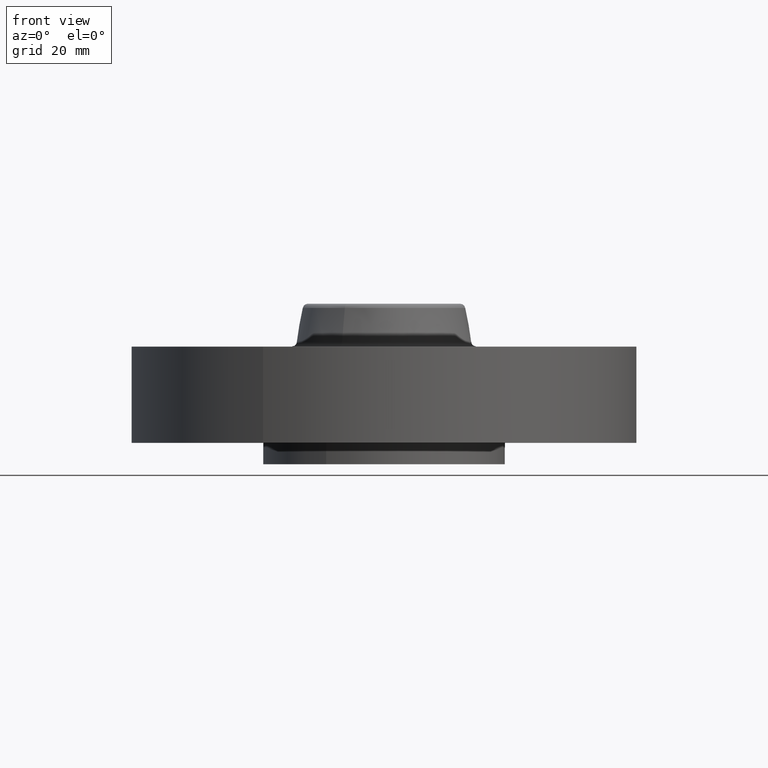
[diagram: clean part render]
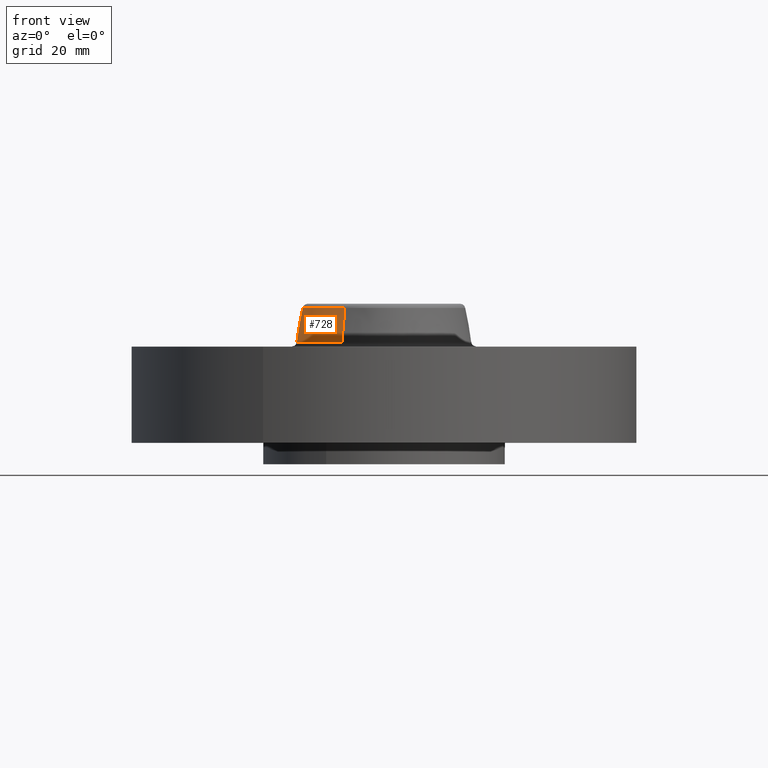
[diagram: same view with one face highlighted and labeled with its STEP entity id]
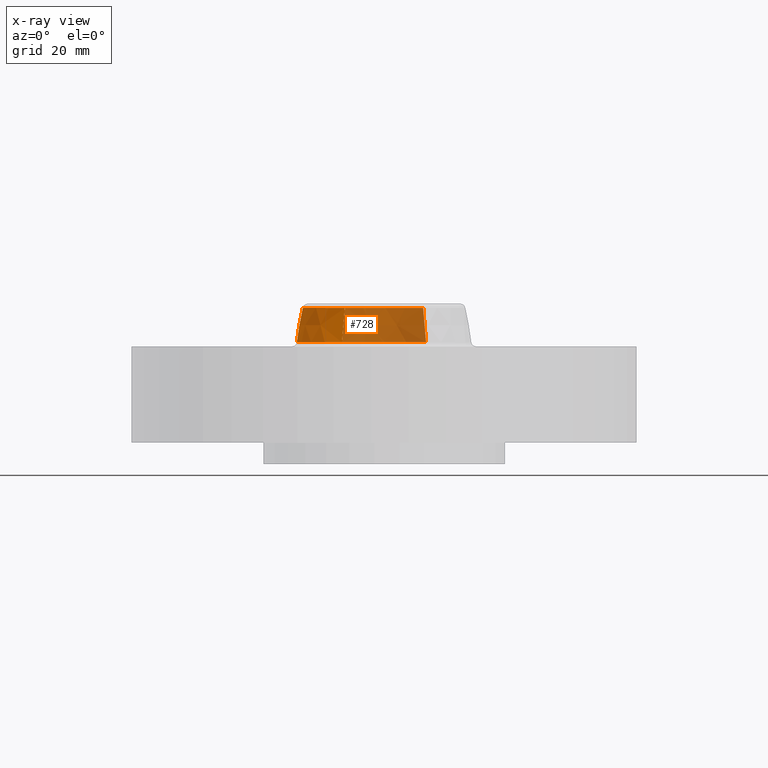
[diagram: x-ray of the same camera — body ghosted, the highlighted face saturated]
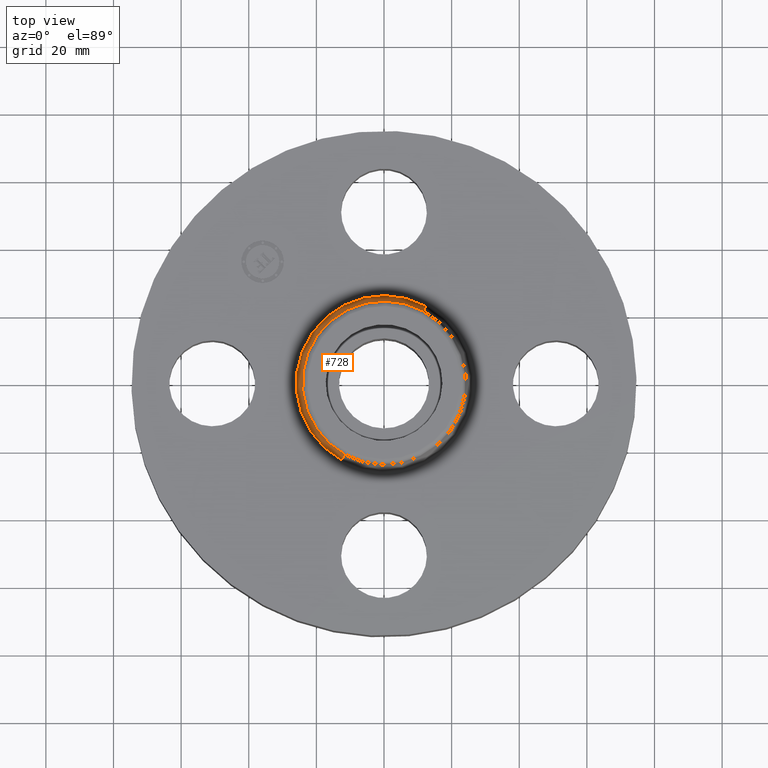
[diagram: same view with one face highlighted and labeled with its STEP entity id]
A machine part, front view. The second image highlights one B-rep face of the part: STEP entity #728.
The next image is the same camera in x-ray: the body ghosted, the highlighted face saturated — about 65% of this face is hidden behind the body in this view.
A second angle (top view) of the same face is appended — the face is thin or edge-on in the first view.
In plain terms, the highlighted conical surface has half-angle 10 deg.
Its self-contained STEP definition (entity closure, byte-faithful):
#633=AXIS2_PLACEMENT_3D('Circle Axis2P3D',#631,#632,$) ;
#689=AXIS2_PLACEMENT_3D('Cone Axis2P3D',#686,#687,#688) ;
#719=AXIS2_PLACEMENT_3D('Circle Axis2P3D',#717,#718,$) ;
#604=CARTESIAN_POINT('Vertex',(0.489616933077,0.89623778434,1.16958110934)) ;
#611=CARTESIAN_POINT('Vertex',(-0.489616933077,-0.89623778434,1.16958110934)) ;
#631=CARTESIAN_POINT('Axis2P3D Location',(0.,0.,1.16958110934)) ;
#686=CARTESIAN_POINT('Axis2P3D Location',(0.,0.,1.57041889067)) ;
#691=CARTESIAN_POINT('Line Origine',(0.47267439034,0.865224667885,1.37000000001)) ;
#695=CARTESIAN_POINT('Vertex',(0.455731847603,0.834211551431,1.57041889067)) ;
#702=CARTESIAN_POINT('Vertex',(-0.455731847603,-0.834211551431,1.57041889067)) ;
#705=CARTESIAN_POINT('Line Origine',(-0.47267439034,-0.865224667885,1.37000000001)) ;
#717=CARTESIAN_POINT('Axis2P3D Location',(0.,0.,1.57041889067)) ;
#632=DIRECTION('Axis2P3D Direction',(0.,0.,-0.0393700787402)) ;
#687=DIRECTION('Axis2P3D Direction',(0.,0.,-0.0393700787402)) ;
#688=DIRECTION('Axis2P3D XDirection',(-0.0188750212049,-0.0345504945626,0.)) ;
#692=DIRECTION('Vector Direction',(0.00327761303565,0.00599963041829,-0.03877195878)) ;
#706=DIRECTION('Vector Direction',(-0.00327761303565,-0.00599963041829,-0.03877195878)) ;
#718=DIRECTION('Axis2P3D Direction',(0.,0.,-0.0393700787402)) ;
#693=VECTOR('Line Direction',#692,0.0393700787402) ;
#707=VECTOR('Line Direction',#706,0.0393700787402) ;
#723=ORIENTED_EDGE('',*,*,#635,.F.) ;
#724=ORIENTED_EDGE('',*,*,#709,.T.) ;
#725=ORIENTED_EDGE('',*,*,#721,.T.) ;
#726=ORIENTED_EDGE('',*,*,#697,.F.) ;
#728=ADVANCED_FACE('PartBody',(#727),#690,.T.) ;
#634=CIRCLE('generated circle',#633,1.02125751269) ;
#720=CIRCLE('generated circle',#719,0.95057899696) ;
#690=CONICAL_SURFACE('Cone',#689,0.95057899696,0.174532925199) ;
#635=EDGE_CURVE('',#612,#605,#634,.T.) ;
#697=EDGE_CURVE('',#605,#696,#694,.F.) ;
#709=EDGE_CURVE('',#612,#703,#708,.F.) ;
#721=EDGE_CURVE('',#703,#696,#720,.T.) ;
#722=EDGE_LOOP('',(#723,#724,#725,#726)) ;
#727=FACE_OUTER_BOUND('',#722,.T.) ;
#694=LINE('Line',#691,#693) ;
#708=LINE('Line',#705,#707) ;
#605=VERTEX_POINT('',#604) ;
#612=VERTEX_POINT('',#611) ;
#696=VERTEX_POINT('',#695) ;
#703=VERTEX_POINT('',#702) ;